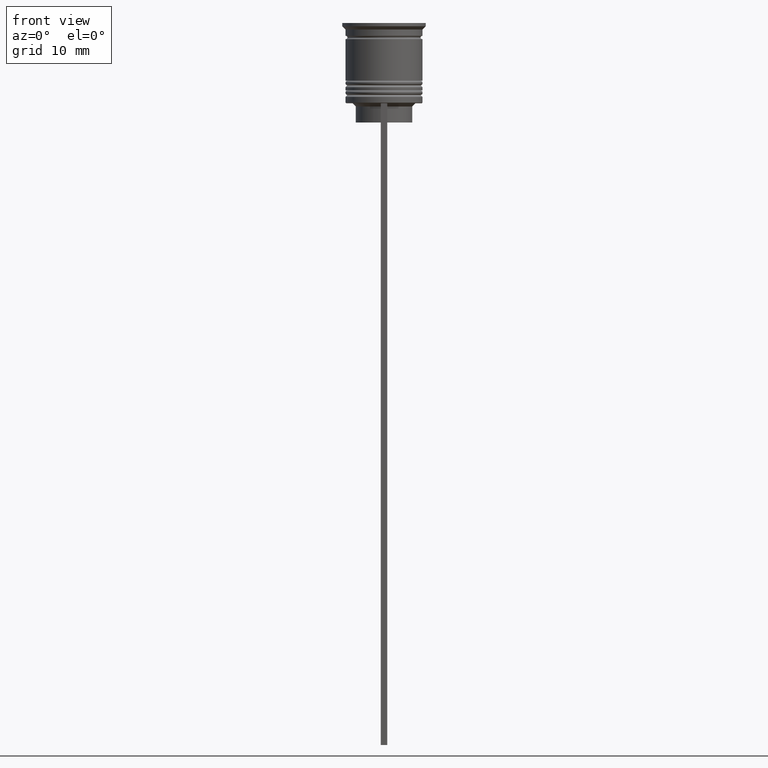
[diagram: clean part render]
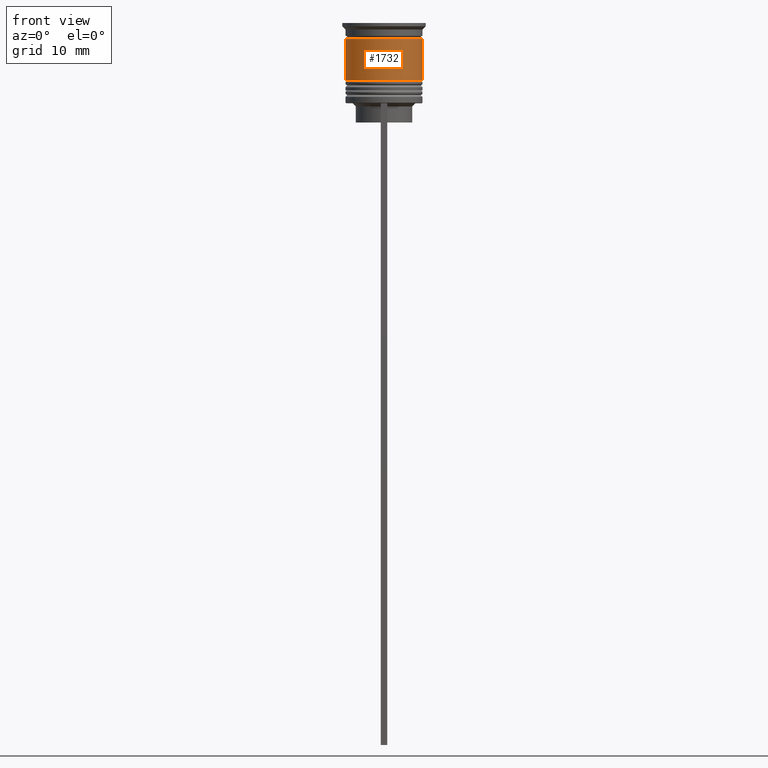
[diagram: same view with one face highlighted and labeled with its STEP entity id]
A machine part, front view. The second image highlights one B-rep face of the part: STEP entity #1732.
In plain terms, the highlighted cylindrical surface (partial cylindrical patch) has radius 6 mm, axis along (-0, -0, 1).
Its self-contained STEP definition (entity closure, byte-faithful):
#37 = CARTESIAN_POINT ( 'NONE',  ( 0.000000000000000000, 0.000000000000000000, -9.000000000000001776 ) ) ;
#51 = DIRECTION ( 'NONE',  ( 1.000000000000000000, 0.000000000000000000, 0.000000000000000000 ) ) ;
#55 = CARTESIAN_POINT ( 'NONE',  ( 0.000000000000000000, 0.000000000000000000, -2.500000000000000444 ) ) ;
#115 = EDGE_CURVE ( 'NONE', #690, #1823, #1839, .T. ) ;
#245 = ORIENTED_EDGE ( 'NONE', *, *, #983, .F. ) ;
#247 = DIRECTION ( 'NONE',  ( -0.000000000000000000, -0.000000000000000000, 1.000000000000000000 ) ) ;
#266 = LINE ( 'NONE', #1365, #2408 ) ;
#336 = CARTESIAN_POINT ( 'NONE',  ( 6.000000000000000000, 0.000000000000000000, 0.000000000000000000 ) ) ;
#356 = DIRECTION ( 'NONE',  ( -0.000000000000000000, -0.000000000000000000, 1.000000000000000000 ) ) ;
#440 = CARTESIAN_POINT ( 'NONE',  ( 6.000000000000000888, 0.000000000000000000, -9.000000000000001776 ) ) ;
#479 = AXIS2_PLACEMENT_3D ( 'NONE', #55, #247, #1393 ) ;
#545 = CARTESIAN_POINT ( 'NONE',  ( -6.000000000000001776, 7.347880794884121708E-16, -9.000000000000001776 ) ) ;
#574 = CARTESIAN_POINT ( 'NONE',  ( 0.000000000000000000, 0.000000000000000000, 0.000000000000000000 ) ) ;
#634 = CIRCLE ( 'NONE', #479, 5.999999999999999112 ) ;
#650 = LINE ( 'NONE', #336, #1358 ) ;
#690 = VERTEX_POINT ( 'NONE', #545 ) ;
#796 = AXIS2_PLACEMENT_3D ( 'NONE', #574, #2468, #2123 ) ;
#799 = DIRECTION ( 'NONE',  ( -0.000000000000000000, -0.000000000000000000, 1.000000000000000000 ) ) ;
#983 = EDGE_CURVE ( 'NONE', #2210, #1100, #634, .T. ) ;
#1033 = DIRECTION ( 'NONE',  ( -0.000000000000000000, -0.000000000000000000, 1.000000000000000000 ) ) ;
#1100 = VERTEX_POINT ( 'NONE', #2443 ) ;
#1231 = ORIENTED_EDGE ( 'NONE', *, *, #2283, .T. ) ;
#1337 = EDGE_CURVE ( 'NONE', #690, #2210, #266, .T. ) ;
#1345 = CYLINDRICAL_SURFACE ( 'NONE', #796, 6.000000000000000000 ) ;
#1358 = VECTOR ( 'NONE', #356, 1000.000000000000000 ) ;
#1365 = CARTESIAN_POINT ( 'NONE',  ( -6.000000000000000000, 7.347880794884119736E-16, 0.000000000000000000 ) ) ;
#1393 = DIRECTION ( 'NONE',  ( 1.000000000000000000, 0.000000000000000000, 0.000000000000000000 ) ) ;
#1473 = EDGE_LOOP ( 'NONE', ( #2063, #2291, #1231, #245 ) ) ;
#1530 = FACE_OUTER_BOUND ( 'NONE', #1473, .T. ) ;
#1732 = ADVANCED_FACE ( 'NONE', ( #1530 ), #1345, .T. ) ;
#1788 = CARTESIAN_POINT ( 'NONE',  ( -5.999999999999999112, 7.347880794884118750E-16, -2.500000000000000444 ) ) ;
#1802 = AXIS2_PLACEMENT_3D ( 'NONE', #37, #799, #51 ) ;
#1823 = VERTEX_POINT ( 'NONE', #440 ) ;
#1839 = CIRCLE ( 'NONE', #1802, 6.000000000000000888 ) ;
#2063 = ORIENTED_EDGE ( 'NONE', *, *, #1337, .F. ) ;
#2123 = DIRECTION ( 'NONE',  ( 1.000000000000000000, 0.000000000000000000, 0.000000000000000000 ) ) ;
#2210 = VERTEX_POINT ( 'NONE', #1788 ) ;
#2283 = EDGE_CURVE ( 'NONE', #1823, #1100, #650, .T. ) ;
#2291 = ORIENTED_EDGE ( 'NONE', *, *, #115, .T. ) ;
#2408 = VECTOR ( 'NONE', #1033, 1000.000000000000000 ) ;
#2443 = CARTESIAN_POINT ( 'NONE',  ( 5.999999999999999112, 0.000000000000000000, -2.500000000000000444 ) ) ;
#2468 = DIRECTION ( 'NONE',  ( -0.000000000000000000, -0.000000000000000000, 1.000000000000000000 ) ) ;